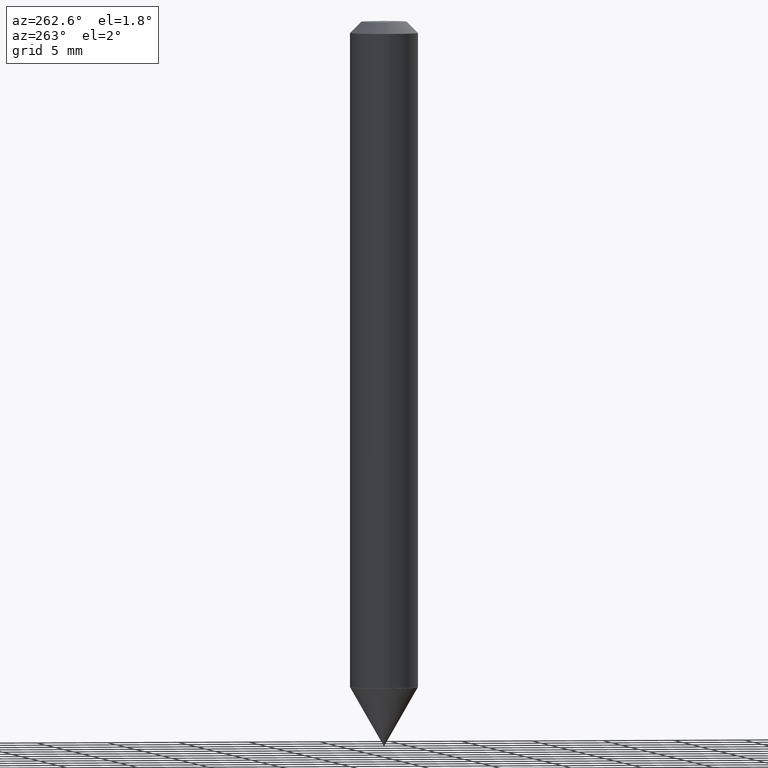
[diagram: clean part render]
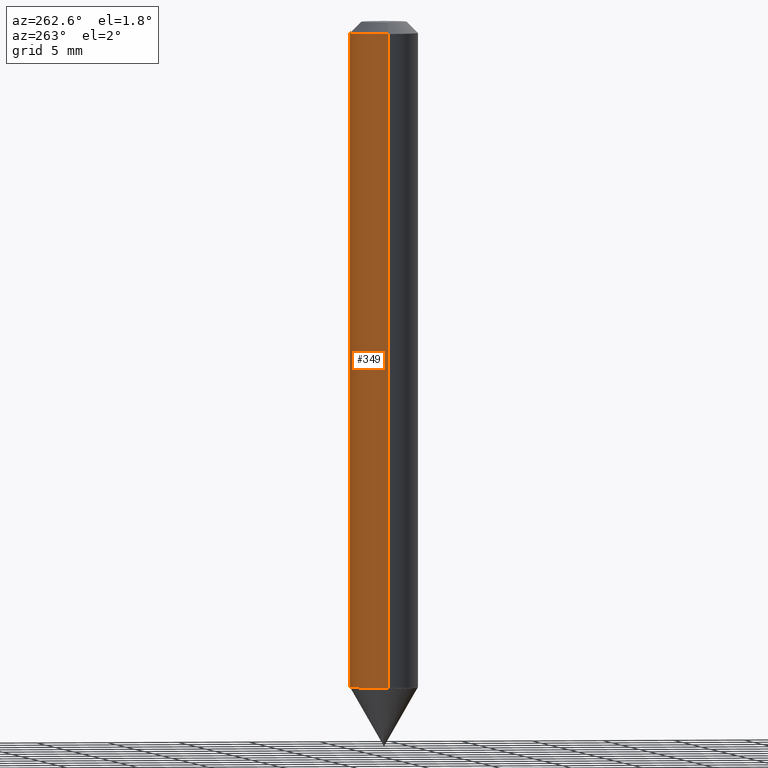
[diagram: same view with one face highlighted and labeled with its STEP entity id]
A machine part, auxiliary view. The second image highlights one B-rep face of the part: STEP entity #349.
In plain terms, the highlighted cylindrical surface (edge-blend (fillet) strip) has radius 2.3813 mm, axis along (-0, 0, 1).
Its self-contained STEP definition (entity closure, byte-faithful):
#6 = CARTESIAN_POINT ( 'NONE',  ( 7.629862675297676574E-31, -1.089342177719068640E-16, -0.03120000000000020673 ) ) ;
#11 = DIRECTION ( 'NONE',  ( 1.000000000000000000, -6.982962677686265133E-15, 0.000000000000000000 ) ) ;
#31 = EDGE_CURVE ( 'NONE', #136, #154, #373, .T. ) ;
#59 = AXIS2_PLACEMENT_3D ( 'NONE', #6, #253, #221 ) ;
#64 = CARTESIAN_POINT ( 'NONE',  ( -0.09375000000000001388, -2.594595935758567797E-15, -0.03120000000000020673 ) ) ;
#65 = EDGE_CURVE ( 'NONE', #390, #193, #191, .T. ) ;
#76 = DIRECTION ( 'NONE',  ( 1.000000000000000000, -6.982962677686266711E-15, 4.876176775795935793E-29 ) ) ;
#93 = CARTESIAN_POINT ( 'NONE',  ( 0.09375000000000001388, -7.635869688049943558E-16, -0.03120000000000020673 ) ) ;
#103 = CARTESIAN_POINT ( 'NONE',  ( -0.09375000000000012490, 6.661338147750948117E-16, -4.611501647113980301E-30 ) ) ;
#118 = CIRCLE ( 'NONE', #201, 0.09375000000000024980 ) ;
#120 = EDGE_CURVE ( 'NONE', #390, #136, #118, .T. ) ;
#125 = ORIENTED_EDGE ( 'NONE', *, *, #207, .F. ) ;
#136 = VERTEX_POINT ( 'NONE', #216 ) ;
#149 = CARTESIAN_POINT ( 'NONE',  ( 0.09375000000000024980, -7.067178034328510701E-15, -1.836620236790417415 ) ) ;
#154 = VERTEX_POINT ( 'NONE', #64 ) ;
#161 = DIRECTION ( 'NONE',  ( -2.445468806185136877E-29, 3.491481338843145188E-15, 1.000000000000000000 ) ) ;
#166 = ORIENTED_EDGE ( 'NONE', *, *, #120, .T. ) ;
#169 = DIRECTION ( 'NONE',  ( -2.445468806185136877E-29, 3.491481338843145188E-15, 1.000000000000000000 ) ) ;
#190 = CARTESIAN_POINT ( 'NONE',  ( 4.491397497879325039E-29, -6.412525283295421619E-15, -1.836620236790417415 ) ) ;
#191 = LINE ( 'NONE', #315, #284 ) ;
#193 = VERTEX_POINT ( 'NONE', #93 ) ;
#198 = FACE_OUTER_BOUND ( 'NONE', #290, .T. ) ;
#201 = AXIS2_PLACEMENT_3D ( 'NONE', #190, #282, #11 ) ;
#207 = EDGE_CURVE ( 'NONE', #193, #154, #275, .T. ) ;
#216 = CARTESIAN_POINT ( 'NONE',  ( -0.09375000000000024980, -5.746391468520326117E-15, -1.836620236790417415 ) ) ;
#221 = DIRECTION ( 'NONE',  ( 1.000000000000000000, -6.982962677686265922E-15, 0.000000000000000000 ) ) ;
#253 = DIRECTION ( 'NONE',  ( -2.445468806185136597E-29, 3.491481338843145583E-15, 1.000000000000000000 ) ) ;
#260 = AXIS2_PLACEMENT_3D ( 'NONE', #322, #296, #76 ) ;
#275 = CIRCLE ( 'NONE', #59, 0.09375000000000001388 ) ;
#282 = DIRECTION ( 'NONE',  ( -2.445468806185136597E-29, 3.491481338843145583E-15, 1.000000000000000000 ) ) ;
#284 = VECTOR ( 'NONE', #169, 39.37007874015748143 ) ;
#290 = EDGE_LOOP ( 'NONE', ( #166, #350, #125, #331 ) ) ;
#296 = DIRECTION ( 'NONE',  ( -2.445468806185136597E-29, 3.491481338843145583E-15, 1.000000000000000000 ) ) ;
#297 = CYLINDRICAL_SURFACE ( 'NONE', #260, 0.09375000000000012490 ) ;
#308 = VECTOR ( 'NONE', #161, 39.37007874015748143 ) ;
#315 = CARTESIAN_POINT ( 'NONE',  ( 0.09375000000000012490, -6.546527510330883916E-16, 4.571415727308696112E-30 ) ) ;
#322 = CARTESIAN_POINT ( 'NONE',  ( 0.000000000000000000, 0.000000000000000000, 0.000000000000000000 ) ) ;
#331 = ORIENTED_EDGE ( 'NONE', *, *, #65, .F. ) ;
#349 = ADVANCED_FACE ( 'NONE', ( #198 ), #297, .T. ) ;
#350 = ORIENTED_EDGE ( 'NONE', *, *, #31, .T. ) ;
#373 = LINE ( 'NONE', #103, #308 ) ;
#390 = VERTEX_POINT ( 'NONE', #149 ) ;